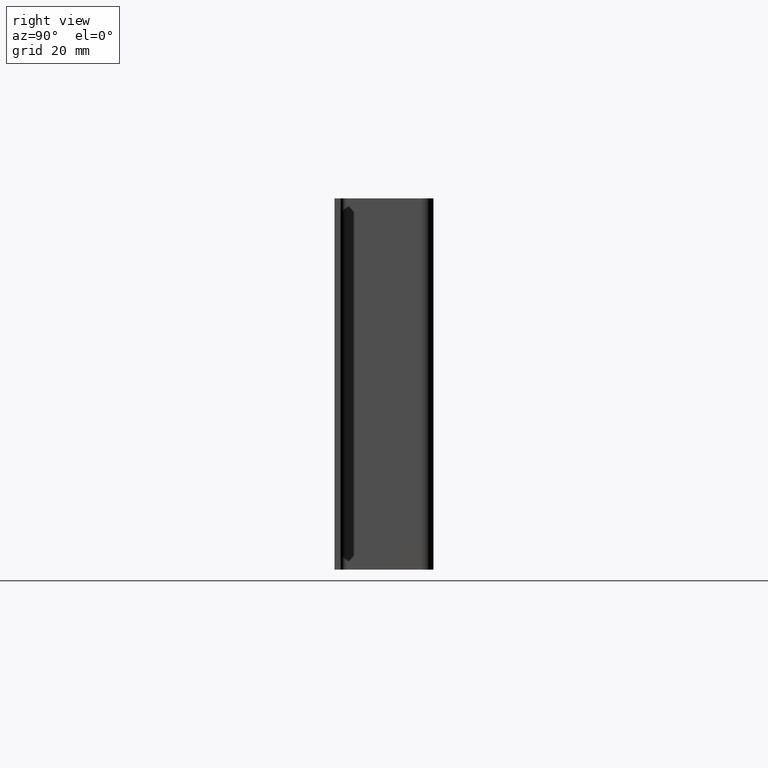
[diagram: clean part render]
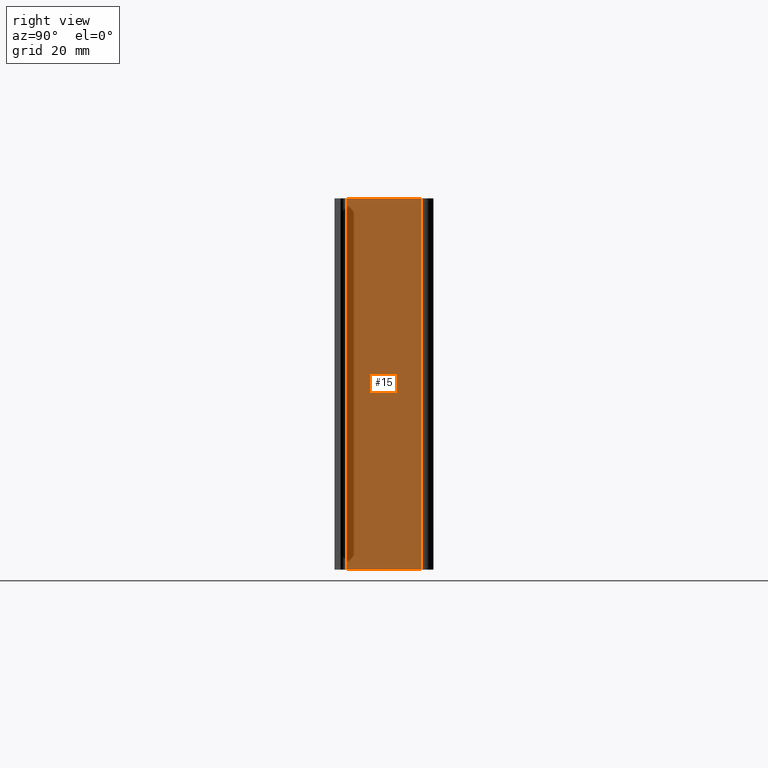
[diagram: same view with one face highlighted and labeled with its STEP entity id]
A machine part, right view. The second image highlights one B-rep face of the part: STEP entity #15.
In plain terms, the highlighted planar face has unit normal (-1, -0, 0).
Its self-contained STEP definition (entity closure, byte-faithful):
#15 = ADVANCED_FACE ( 'NONE', ( #262 ), #275, .F. ) ;
#20 = EDGE_CURVE ( 'NONE', #226, #237, #249, .T. ) ;
#51 = EDGE_CURVE ( 'NONE', #237, #210, #385, .T. ) ;
#52 = EDGE_CURVE ( 'NONE', #226, #221, #422, .T. ) ;
#53 = EDGE_CURVE ( 'NONE', #221, #210, #420, .T. ) ;
#69 = VECTOR ( 'NONE', #391, 1000.000000000000000 ) ;
#70 = VECTOR ( 'NONE', #251, 1000.000000000000000 ) ;
#72 = VECTOR ( 'NONE', #440, 1000.000000000000000 ) ;
#102 = AXIS2_PLACEMENT_3D ( 'NONE', #256, #273, #276 ) ;
#110 = VECTOR ( 'NONE', #430, 1000.000000000000000 ) ;
#151 = ORIENTED_EDGE ( 'NONE', *, *, #52, .T. ) ;
#162 = ORIENTED_EDGE ( 'NONE', *, *, #51, .F. ) ;
#175 = ORIENTED_EDGE ( 'NONE', *, *, #53, .T. ) ;
#181 = ORIENTED_EDGE ( 'NONE', *, *, #20, .F. ) ;
#210 = VERTEX_POINT ( 'NONE', #473 ) ;
#221 = VERTEX_POINT ( 'NONE', #471 ) ;
#226 = VERTEX_POINT ( 'NONE', #486 ) ;
#237 = VERTEX_POINT ( 'NONE', #452 ) ;
#249 = LINE ( 'NONE', #250, #70 ) ;
#250 = CARTESIAN_POINT ( 'NONE',  ( 13.00000000000000200, -1.899999999999999500, 120.0000000000000000 ) ) ;
#251 = DIRECTION ( 'NONE',  ( -7.109522442527900700E-017, 1.000000000000000000, -0.0000000000000000000 ) ) ;
#256 = CARTESIAN_POINT ( 'NONE',  ( 13.00000000000000200, -1.899999999999999500, 120.0000000000000000 ) ) ;
#262 = FACE_OUTER_BOUND ( 'NONE', #272, .T. ) ;
#272 = EDGE_LOOP ( 'NONE', ( #175, #162, #181, #151 ) ) ;
#273 = DIRECTION ( 'NONE',  ( -1.000000000000000000, -7.109522442527900700E-017, 0.0000000000000000000 ) ) ;
#275 = PLANE ( 'NONE',  #102 ) ;
#276 = DIRECTION ( 'NONE',  ( 7.109522442527900700E-017, -1.000000000000000000, 0.0000000000000000000 ) ) ;
#385 = LINE ( 'NONE', #388, #72 ) ;
#388 = CARTESIAN_POINT ( 'NONE',  ( 13.00000000000000200, -1.899999999999999500, 120.0000000000000000 ) ) ;
#391 = DIRECTION ( 'NONE',  ( -0.0000000000000000000, -0.0000000000000000000, -1.000000000000000000 ) ) ;
#420 = LINE ( 'NONE', #429, #110 ) ;
#422 = LINE ( 'NONE', #423, #69 ) ;
#423 = CARTESIAN_POINT ( 'NONE',  ( 13.00000000000000400, -26.29999999999999000, 120.0000000000000000 ) ) ;
#429 = CARTESIAN_POINT ( 'NONE',  ( 13.00000000000000200, -1.899999999999999500, 0.0000000000000000000 ) ) ;
#430 = DIRECTION ( 'NONE',  ( -7.109522442527900700E-017, 1.000000000000000000, -0.0000000000000000000 ) ) ;
#440 = DIRECTION ( 'NONE',  ( -0.0000000000000000000, -0.0000000000000000000, -1.000000000000000000 ) ) ;
#452 = CARTESIAN_POINT ( 'NONE',  ( 13.00000000000000200, -1.899999999999999500, 120.0000000000000000 ) ) ;
#471 = CARTESIAN_POINT ( 'NONE',  ( 13.00000000000000400, -26.29999999999999000, 0.0000000000000000000 ) ) ;
#473 = CARTESIAN_POINT ( 'NONE',  ( 13.00000000000000200, -1.899999999999999500, 0.0000000000000000000 ) ) ;
#486 = CARTESIAN_POINT ( 'NONE',  ( 13.00000000000000400, -26.29999999999999000, 120.0000000000000000 ) ) ;